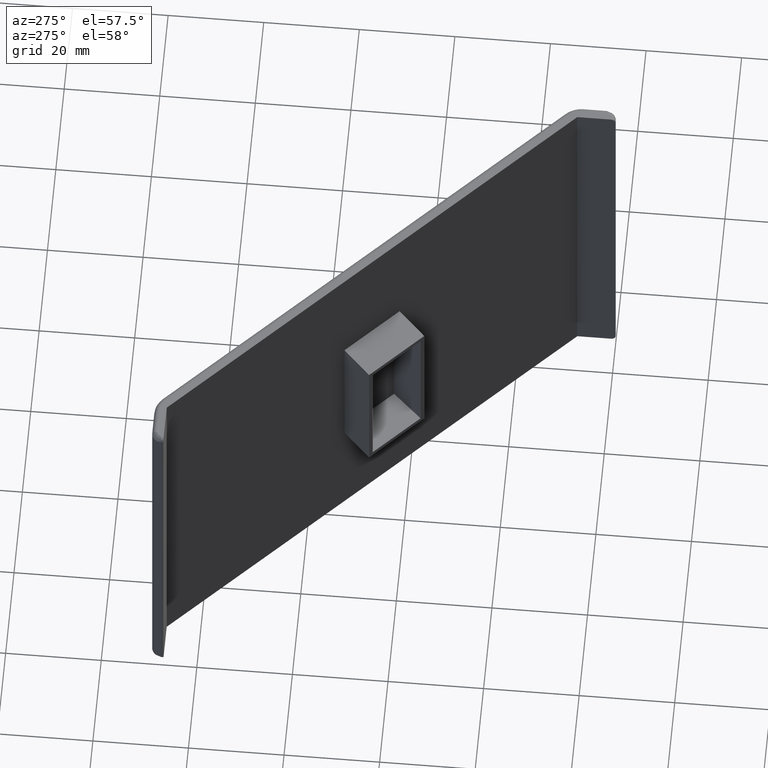
[diagram: clean part render]
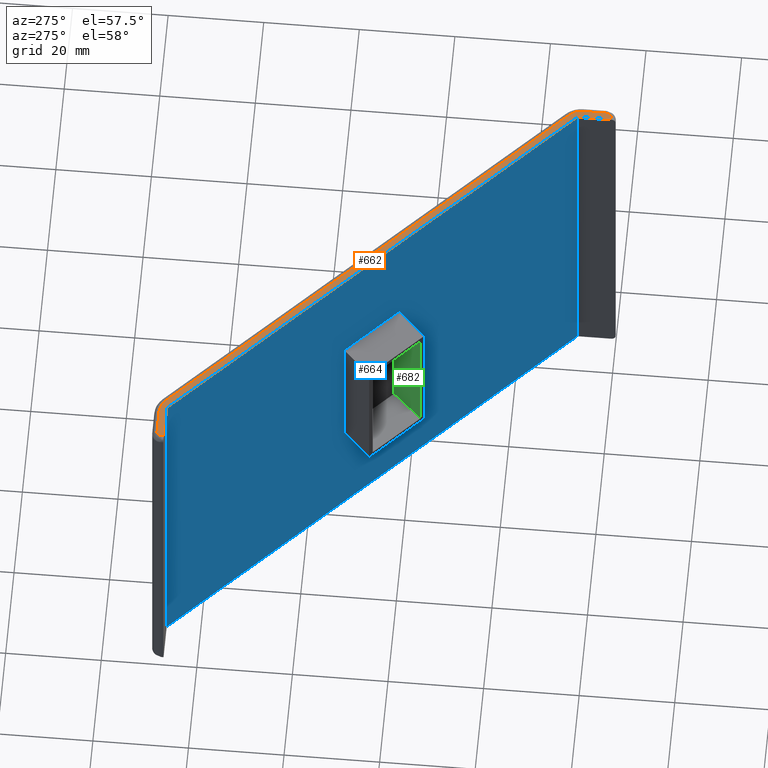
[diagram: same view with three faces highlighted in distinct colors, each labeled with its STEP entity id]
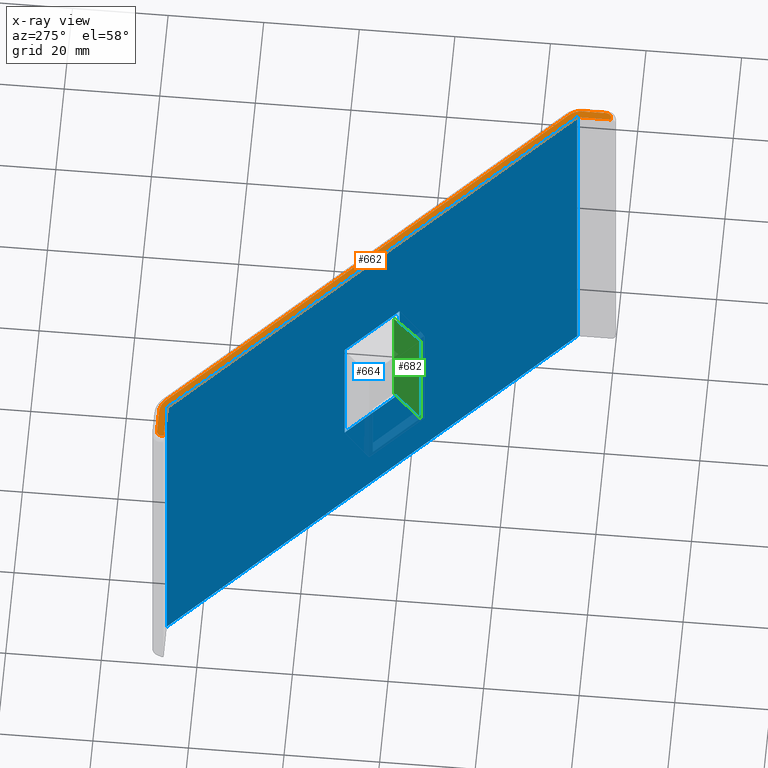
[diagram: x-ray of the same camera — body ghosted, the three highlighted faces saturated]
A machine part, auxiliary view with three faces highlighted in distinct colors.
The next image is the same camera in x-ray (body ghosted, the three faces saturated) — at least one of them is partly hidden behind the body in this view.
Their STEP definitions:

[orange] entity #662 — the highlighted planar face has unit normal (0, 0, 1).
#42=FACE_OUTER_BOUND('',#84,.T.);
#84=EDGE_LOOP('',(#446,#447,#448,#449,#450,#451,#452,#453,#454,#455,#456,
#457));
#128=LINE('',#998,#190);
#129=LINE('',#1002,#191);
#130=LINE('',#1004,#192);
#131=LINE('',#1006,#193);
#132=LINE('',#1008,#194);
#133=LINE('',#1010,#195);
#134=LINE('',#1014,#196);
#135=LINE('',#1017,#197);
#190=VECTOR('',#786,4.96446609406724);
#191=VECTOR('',#789,0.499999999999989);
#192=VECTOR('',#790,7.);
#193=VECTOR('',#791,111.722871427475);
#194=VECTOR('',#792,7.);
#195=VECTOR('',#793,0.499999999999989);
#196=VECTOR('',#796,4.96446609406727);
#197=VECTOR('',#799,109.651803615609);
#252=CIRCLE('',#707,4.);
#253=CIRCLE('',#708,1.);
#254=CIRCLE('',#709,1.);
#255=CIRCLE('',#710,4.);
#288=VERTEX_POINT('',#994);
#289=VERTEX_POINT('',#995);
#290=VERTEX_POINT('',#997);
#291=VERTEX_POINT('',#999);
#292=VERTEX_POINT('',#1001);
#293=VERTEX_POINT('',#1003);
#294=VERTEX_POINT('',#1005);
#295=VERTEX_POINT('',#1007);
#296=VERTEX_POINT('',#1009);
#297=VERTEX_POINT('',#1011);
#298=VERTEX_POINT('',#1013);
#299=VERTEX_POINT('',#1015);
#348=EDGE_CURVE('',#288,#289,#252,.T.);
#349=EDGE_CURVE('',#288,#290,#128,.T.);
#350=EDGE_CURVE('',#290,#291,#253,.T.);
#351=EDGE_CURVE('',#291,#292,#129,.T.);
#352=EDGE_CURVE('',#292,#293,#130,.T.);
#353=EDGE_CURVE('',#293,#294,#131,.T.);
#354=EDGE_CURVE('',#294,#295,#132,.T.);
#355=EDGE_CURVE('',#295,#296,#133,.T.);
#356=EDGE_CURVE('',#296,#297,#254,.T.);
#357=EDGE_CURVE('',#297,#298,#134,.T.);
#358=EDGE_CURVE('',#299,#298,#255,.T.);
#359=EDGE_CURVE('',#299,#289,#135,.T.);
#446=ORIENTED_EDGE('',*,*,#348,.F.);
#447=ORIENTED_EDGE('',*,*,#349,.T.);
#448=ORIENTED_EDGE('',*,*,#350,.T.);
#449=ORIENTED_EDGE('',*,*,#351,.T.);
#450=ORIENTED_EDGE('',*,*,#352,.T.);
#451=ORIENTED_EDGE('',*,*,#353,.T.);
#452=ORIENTED_EDGE('',*,*,#354,.T.);
#453=ORIENTED_EDGE('',*,*,#355,.T.);
#454=ORIENTED_EDGE('',*,*,#356,.T.);
#455=ORIENTED_EDGE('',*,*,#357,.T.);
#456=ORIENTED_EDGE('',*,*,#358,.F.);
#457=ORIENTED_EDGE('',*,*,#359,.T.);
#642=PLANE('',#706);
#662=ADVANCED_FACE('',(#42),#642,.T.);
#706=AXIS2_PLACEMENT_3D('',#993,#782,#783);
#707=AXIS2_PLACEMENT_3D('',#996,#784,#785);
#708=AXIS2_PLACEMENT_3D('',#1000,#787,#788);
#709=AXIS2_PLACEMENT_3D('',#1012,#794,#795);
#710=AXIS2_PLACEMENT_3D('',#1016,#797,#798);
#782=DIRECTION('center_axis',(0.,0.,1.));
#783=DIRECTION('ref_axis',(1.,0.,0.));
#784=DIRECTION('center_axis',(0.,0.,-1.));
#785=DIRECTION('ref_axis',(1.,3.46944695195361E-15,0.));
#786=DIRECTION('',(-1.,0.,0.));
#787=DIRECTION('center_axis',(0.,0.,1.));
#788=DIRECTION('ref_axis',(1.,0.,0.));
#789=DIRECTION('',(-1.47115392784558E-16,-1.,0.));
#790=DIRECTION('',(1.,0.,0.));
#791=DIRECTION('',(0.707106781186548,-0.707106781186547,0.));
#792=DIRECTION('',(0.,-1.,0.));
#793=DIRECTION('',(1.,0.,0.));
#794=DIRECTION('center_axis',(0.,0.,1.));
#795=DIRECTION('ref_axis',(1.,0.,0.));
#796=DIRECTION('',(0.,1.,0.));
#797=DIRECTION('center_axis',(0.,0.,-1.));
#798=DIRECTION('ref_axis',(1.,6.28837260041592E-15,0.));
#799=DIRECTION('',(-0.707106781186548,0.707106781186547,0.));
#993=CARTESIAN_POINT('Origin',(-5.57195890989182E-15,87.,42.5));
#994=CARTESIAN_POINT('',(6.96446609406723,88.5,42.5));
#995=CARTESIAN_POINT('',(9.79289321881342,87.3284271247462,42.5));
#996=CARTESIAN_POINT('Origin',(6.96446609406723,84.5,42.5));
#997=CARTESIAN_POINT('',(2.,88.5,42.5));
#998=CARTESIAN_POINT('',(2.,88.5,42.5));
#999=CARTESIAN_POINT('',(0.999999999999994,87.5,42.5));
#1000=CARTESIAN_POINT('Origin',(1.99999999999999,87.5,42.5));
#1001=CARTESIAN_POINT('',(0.999999999999994,87.,42.5));
#1002=CARTESIAN_POINT('',(0.999999999999994,87.,42.5));
#1003=CARTESIAN_POINT('',(7.99999999999999,87.,42.5));
#1004=CARTESIAN_POINT('',(-5.57195890989182E-15,87.,42.5));
#1005=CARTESIAN_POINT('',(87.,8.,42.5));
#1006=CARTESIAN_POINT('',(7.99999999999999,87.,42.5));
#1007=CARTESIAN_POINT('',(87.,1.,42.5));
#1008=CARTESIAN_POINT('',(87.,8.,42.5));
#1009=CARTESIAN_POINT('',(87.5,1.,42.5));
#1010=CARTESIAN_POINT('',(87.5,1.,42.5));
#1011=CARTESIAN_POINT('',(88.5,2.,42.5));
#1012=CARTESIAN_POINT('Origin',(87.5,2.,42.5));
#1013=CARTESIAN_POINT('',(88.5,6.96446609406727,42.5));
#1014=CARTESIAN_POINT('',(88.5,9.03553390593274,42.5));
#1015=CARTESIAN_POINT('',(87.3284271247462,9.79289321881346,42.5));
#1016=CARTESIAN_POINT('Origin',(84.5,6.96446609406727,42.5));
#1017=CARTESIAN_POINT('',(8.32842712474615,88.7928932188134,42.5));

[blue] entity #664 — the highlighted planar face has unit normal (0.7071, 0.7071, 0).
#40=FACE_BOUND('',#87,.T.);
#44=FACE_OUTER_BOUND('',#86,.T.);
#86=EDGE_LOOP('',(#470,#471,#472,#473));
#87=EDGE_LOOP('',(#474,#475,#476,#477));
#131=LINE('',#1006,#193);
#140=LINE('',#1035,#202);
#144=LINE('',#1044,#206);
#145=LINE('',#1045,#207);
#146=LINE('',#1048,#208);
#147=LINE('',#1050,#209);
#148=LINE('',#1052,#210);
#149=LINE('',#1053,#211);
#193=VECTOR('',#791,111.722871427475);
#202=VECTOR('',#812,111.722871427475);
#206=VECTOR('',#820,85.);
#207=VECTOR('',#821,85.);
#208=VECTOR('',#822,15.);
#209=VECTOR('',#823,32.);
#210=VECTOR('',#824,15.);
#211=VECTOR('',#825,32.);
#293=VERTEX_POINT('',#1003);
#294=VERTEX_POINT('',#1005);
#307=VERTEX_POINT('',#1032);
#308=VERTEX_POINT('',#1034);
#312=VERTEX_POINT('',#1046);
#313=VERTEX_POINT('',#1047);
#314=VERTEX_POINT('',#1049);
#315=VERTEX_POINT('',#1051);
#353=EDGE_CURVE('',#293,#294,#131,.T.);
#367=EDGE_CURVE('',#308,#307,#140,.T.);
#372=EDGE_CURVE('',#294,#307,#144,.T.);
#373=EDGE_CURVE('',#293,#308,#145,.T.);
#374=EDGE_CURVE('',#312,#313,#146,.T.);
#375=EDGE_CURVE('',#314,#312,#147,.T.);
#376=EDGE_CURVE('',#315,#314,#148,.T.);
#377=EDGE_CURVE('',#313,#315,#149,.T.);
#470=ORIENTED_EDGE('',*,*,#367,.T.);
#471=ORIENTED_EDGE('',*,*,#372,.F.);
#472=ORIENTED_EDGE('',*,*,#353,.F.);
#473=ORIENTED_EDGE('',*,*,#373,.T.);
#474=ORIENTED_EDGE('',*,*,#374,.F.);
#475=ORIENTED_EDGE('',*,*,#375,.F.);
#476=ORIENTED_EDGE('',*,*,#376,.F.);
#477=ORIENTED_EDGE('',*,*,#377,.F.);
#644=PLANE('',#716);
#664=ADVANCED_FACE('',(#44,#40),#644,.F.);
#716=AXIS2_PLACEMENT_3D('',#1043,#818,#819);
#791=DIRECTION('',(0.707106781186548,-0.707106781186547,0.));
#812=DIRECTION('',(0.707106781186548,-0.707106781186547,0.));
#818=DIRECTION('center_axis',(0.707106781186547,0.707106781186548,0.));
#819=DIRECTION('ref_axis',(-0.707106781186545,0.70710678118655,0.));
#820=DIRECTION('',(0.,0.,-1.));
#821=DIRECTION('',(0.,0.,-1.));
#822=DIRECTION('',(0.707106781186547,-0.707106781186547,0.));
#823=DIRECTION('',(0.,0.,-1.));
#824=DIRECTION('',(-0.707106781186547,0.707106781186547,0.));
#825=DIRECTION('',(0.,0.,1.));
#1003=CARTESIAN_POINT('',(7.99999999999999,87.,42.5));
#1005=CARTESIAN_POINT('',(87.,8.,42.5));
#1006=CARTESIAN_POINT('',(7.99999999999999,87.,42.5));
#1032=CARTESIAN_POINT('',(87.,8.,-42.5));
#1034=CARTESIAN_POINT('',(7.99999999999999,87.,-42.5));
#1035=CARTESIAN_POINT('',(7.99999999999999,87.,-42.5));
#1043=CARTESIAN_POINT('Origin',(7.99999999999999,87.,42.5));
#1044=CARTESIAN_POINT('',(87.,8.,42.5));
#1045=CARTESIAN_POINT('',(7.99999999999999,87.,42.5));
#1046=CARTESIAN_POINT('',(42.1966991411009,52.8033008588991,-16.));
#1047=CARTESIAN_POINT('',(52.8033008588991,42.1966991411009,-16.));
#1048=CARTESIAN_POINT('',(42.1966991411009,52.8033008588991,-16.));
#1049=CARTESIAN_POINT('',(42.1966991411009,52.8033008588991,16.));
#1050=CARTESIAN_POINT('',(42.1966991411009,52.8033008588991,14.5));
#1051=CARTESIAN_POINT('',(52.8033008588991,42.1966991411009,16.));
#1052=CARTESIAN_POINT('',(42.1966991411009,52.8033008588991,16.));
#1053=CARTESIAN_POINT('',(52.8033008588991,42.1966991411009,14.5));

[green] entity #682 — the highlighted planar face has unit normal (0.7498, -0.6616, 0).
#62=FACE_OUTER_BOUND('',#106,.T.);
#106=EDGE_LOOP('',(#554,#555,#556,#557));
#151=LINE('',#1059,#213);
#154=LINE('',#1065,#216);
#158=LINE('',#1073,#220);
#189=LINE('',#1149,#251);
#213=VECTOR('',#829,29.);
#216=VECTOR('',#834,8.02656718785059);
#220=VECTOR('',#840,8.02656718785059);
#251=VECTOR('',#913,29.8385244685287);
#316=VERTEX_POINT('',#1055);
#318=VERTEX_POINT('',#1058);
#320=VERTEX_POINT('',#1064);
#323=VERTEX_POINT('',#1072);
#379=EDGE_CURVE('',#318,#316,#151,.T.);
#382=EDGE_CURVE('',#316,#320,#154,.T.);
#386=EDGE_CURVE('',#318,#323,#158,.T.);
#425=EDGE_CURVE('',#323,#320,#189,.T.);
#554=ORIENTED_EDGE('',*,*,#386,.F.);
#555=ORIENTED_EDGE('',*,*,#379,.T.);
#556=ORIENTED_EDGE('',*,*,#382,.T.);
#557=ORIENTED_EDGE('',*,*,#425,.F.);
#660=PLANE('',#742);
#682=ADVANCED_FACE('',(#62),#660,.F.);
#742=AXIS2_PLACEMENT_3D('',#1151,#916,#917);
#829=DIRECTION('',(0.,0.,-1.));
#834=DIRECTION('',(-0.660718428536475,-0.748814219008006,-0.0522343144275855));
#840=DIRECTION('',(-0.660718428536475,-0.748814219008006,0.0522343144275855));
#913=DIRECTION('',(0.,0.,-1.));
#916=DIRECTION('center_axis',(0.749837855365093,-0.661621637086846,0.));
#917=DIRECTION('ref_axis',(0.661621637086845,0.749837855365093,0.));
#1055=CARTESIAN_POINT('',(51.7426406871193,43.2573593128807,-14.5));
#1058=CARTESIAN_POINT('',(51.7426406871193,43.2573593128807,14.5));
#1059=CARTESIAN_POINT('',(51.7426406871193,43.2573593128807,23.9628073243519));
#1064=CARTESIAN_POINT('',(46.4393398282202,37.2469516727951,-14.9192622342643));
#1065=CARTESIAN_POINT('',(46.1272274251895,36.8932242826936,-14.9439368561494));
#1072=CARTESIAN_POINT('',(46.4393398282202,37.2469516727951,14.9192622342643));
#1073=CARTESIAN_POINT('',(46.1272274251895,36.8932242826936,14.9439368561494));
#1149=CARTESIAN_POINT('',(46.4393398282202,37.2469516727951,23.9628073243519));
#1151=CARTESIAN_POINT('Origin',(46.4393398282202,37.2469516727951,23.9628073243519));